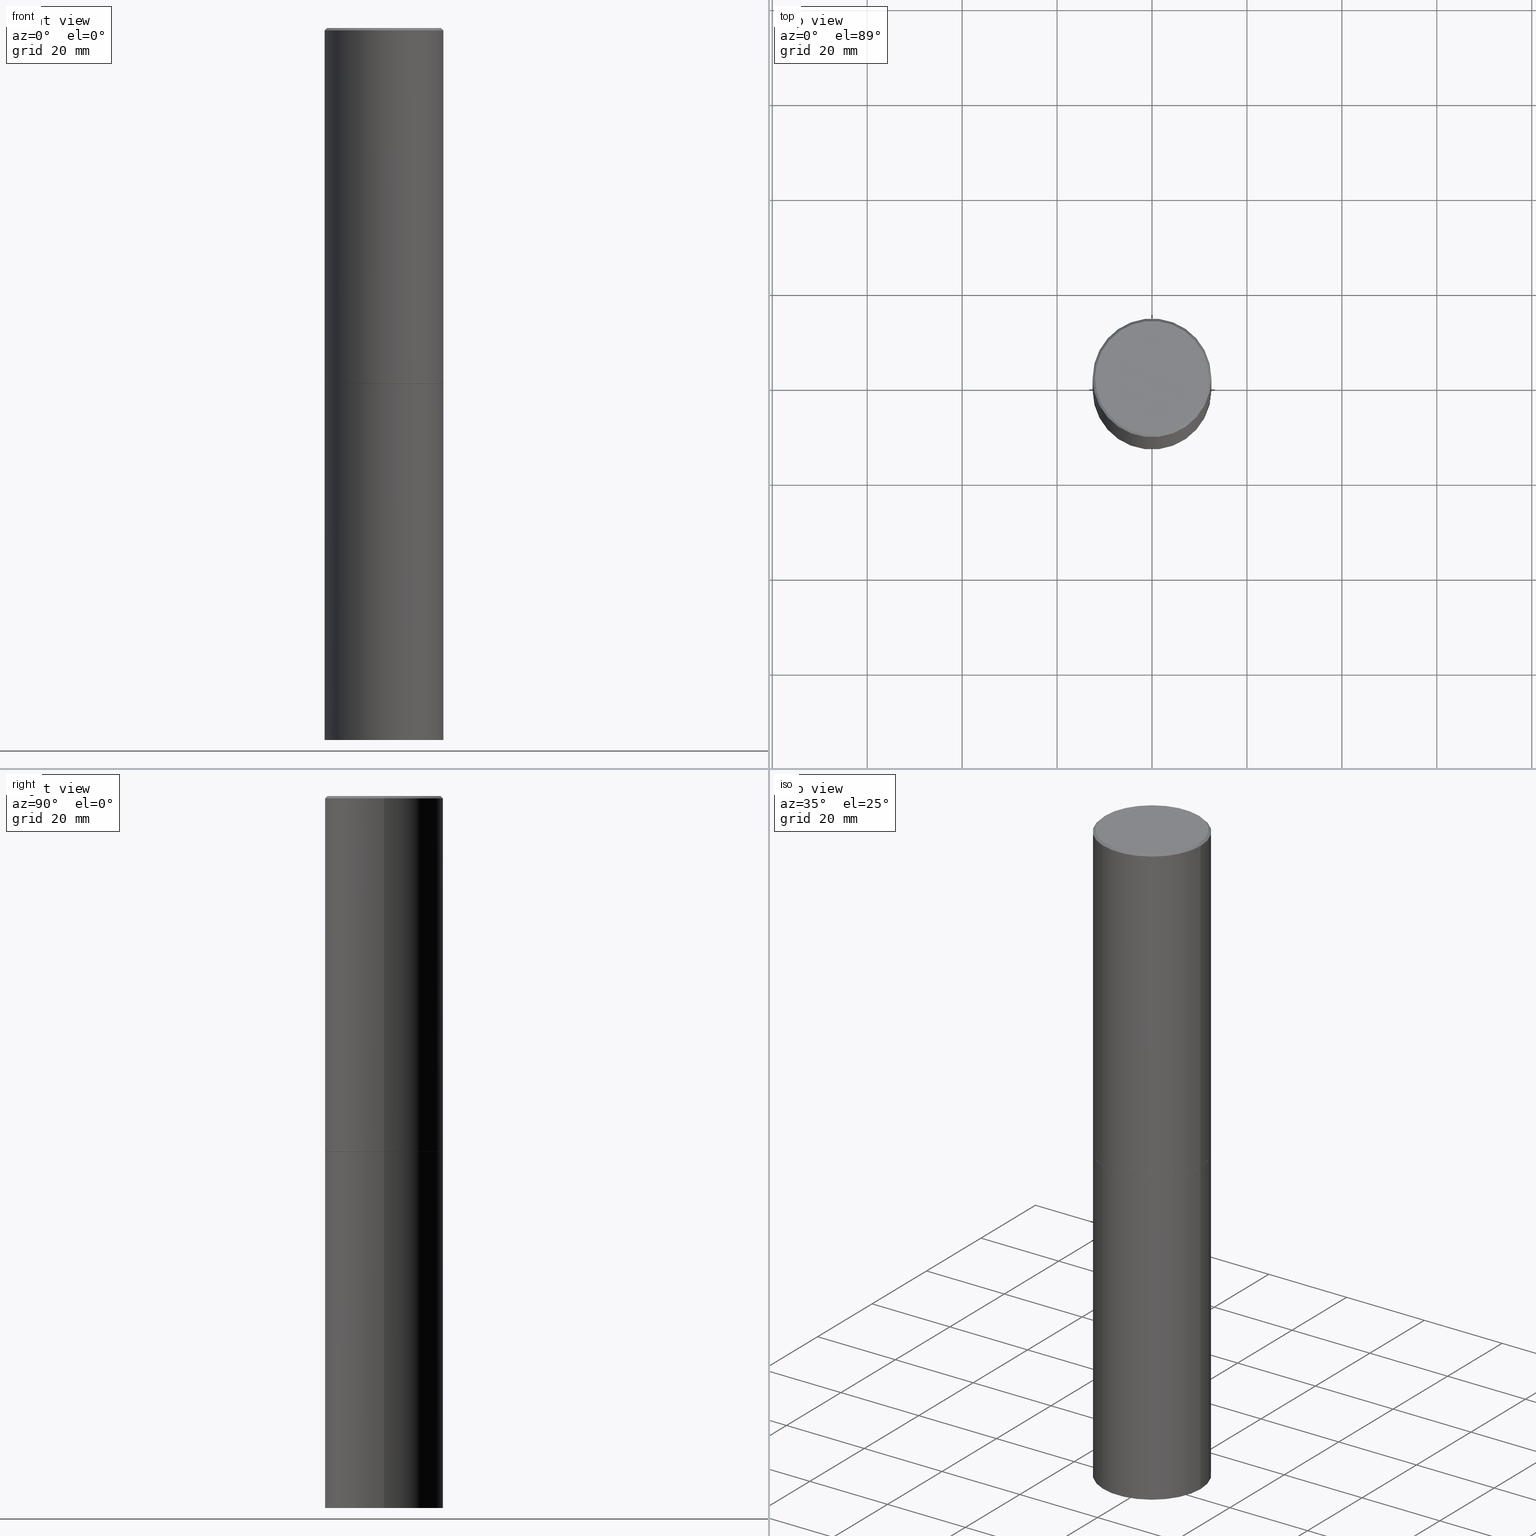
[diagram: canonical four-view strip — front | top / right | iso, engineering-drawing reading convention]
A machine part, canonical four-view strip (front | top / right | iso — engineering-drawing reading convention). The complete STEP part file that produces these views, byte-faithful:
ISO-10303-21;
HEADER;
FILE_DESCRIPTION (( 'STEP AP203' ),
    '1' );
FILE_NAME ('74881.STEP',
    '2024-05-03T15:04:31',
    ( '' ),
    ( '' ),
    'SwSTEP 2.0',
    'SolidWorks 2023',
    '' );
FILE_SCHEMA (( 'CONFIG_CONTROL_DESIGN' ));
ENDSEC;

DATA;
#1 = ORIENTED_EDGE ( 'NONE', *, *, #124, .F. ) ;
#2 = APPROVAL_DATE_TIME ( #34, #362 ) ;
#3 = EDGE_LOOP ( 'NONE', ( #225, #120, #30, #1 ) ) ;
#4 = DIRECTION ( 'NONE',  ( -1.000000000000000000, 6.982962677686265922E-15, 0.000000000000000000 ) ) ;
#5 = CARTESIAN_POINT ( 'NONE',  ( -0.4921499999999999764, 3.496936074043332897E-15, -2.420853904668951509E-29 ) ) ;
#6 = ORIENTED_EDGE ( 'NONE', *, *, #137, .F. ) ;
#7 = COORDINATED_UNIVERSAL_TIME_OFFSET ( 5, 0, .BEHIND. ) ;
#8 = DIRECTION ( 'NONE',  ( -2.445468806185136877E-29, 3.491481338843145188E-15, 1.000000000000000000 ) ) ;
#9 = ADVANCED_FACE ( 'NONE', ( #294 ), #233, .T. ) ;
#10 = DIRECTION ( 'NONE',  ( -2.445468806185136597E-29, 3.491481338843145583E-15, 1.000000000000000000 ) ) ;
#11 = FACE_OUTER_BOUND ( 'NONE', #155, .T. ) ;
#12 = LINE ( 'NONE', #173, #244 ) ;
#13 = ADVANCED_FACE ( 'NONE', ( #272 ), #148, .T. ) ;
#14 = DIRECTION ( 'NONE',  ( -1.000000000000000000, 6.982962677686265922E-15, -4.876176775795935793E-29 ) ) ;
#15 = CONICAL_SURFACE ( 'NONE', #24, 0.4911499999999999755, 0.7853981633978239785 ) ;
#16 = APPROVAL ( #310, 'UNSPECIFIED' ) ;
#17 = DIRECTION ( 'NONE',  ( -2.445468806185136597E-29, 3.491481338843145583E-15, 1.000000000000000000 ) ) ;
#18 = APPROVAL_ROLE ( '' ) ;
#19 = SECURITY_CLASSIFICATION ( '', '', #224 ) ;
#20 = CARTESIAN_POINT ( 'NONE',  ( 7.220735744022851398E-29, -1.030929694920215344E-14, -2.952699999999999214 ) ) ;
#21 = DATE_AND_TIME ( #110, #292 ) ;
#22 = CARTESIAN_POINT ( 'NONE',  ( 7.220735744022851398E-29, -1.030929694920215344E-14, -2.952699999999999214 ) ) ;
#23 = CONICAL_SURFACE ( 'NONE', #52, 0.4921499999999996988, 0.7853981633974472798 ) ;
#24 = AXIS2_PLACEMENT_3D ( 'NONE', #299, #328, #104 ) ;
#25 = PERSON_AND_ORGANIZATION ( #86, #228 ) ;
#26 = EDGE_CURVE ( 'NONE', #61, #260, #196, .T. ) ;
#27 = ORIENTED_EDGE ( 'NONE', *, *, #195, .T. ) ;
#28 = DATE_AND_TIME ( #345, #158 ) ;
#29 = CARTESIAN_POINT ( 'NONE',  ( 3.436665081823367957E-15, 0.4921499999999896513, -2.952700000000001435 ) ) ;
#30 = ORIENTED_EDGE ( 'NONE', *, *, #195, .F. ) ;
#31 = EDGE_CURVE ( 'NONE', #257, #288, #344, .T. ) ;
#32 = VECTOR ( 'NONE', #271, 39.37007874015748143 ) ;
#33 = CARTESIAN_POINT ( 'NONE',  ( 4.890937612370296805E-31, -6.982962677686323656E-17, -0.02000000000000009409 ) ) ;
#34 = DATE_AND_TIME ( #314, #168 ) ;
#35 = FACE_OUTER_BOUND ( 'NONE', #235, .T. ) ;
#36 = ORIENTED_EDGE ( 'NONE', *, *, #101, .T. ) ;
#37 = EDGE_CURVE ( 'NONE', #227, #281, #140, .T. ) ;
#38 = FACE_OUTER_BOUND ( 'NONE', #83, .T. ) ;
#39 = LOCAL_TIME ( 11, 4, 31.00000000000000000, #87 ) ;
#40 = PLANE ( 'NONE',  #145 ) ;
#41 = CC_DESIGN_PERSON_AND_ORGANIZATION_ASSIGNMENT ( #166, #190, ( #19 ) ) ;
#42 = DIRECTION ( 'NONE',  ( 1.000000000000000000, -6.982962677686265922E-15, 0.000000000000000000 ) ) ;
#43 = CARTESIAN_POINT ( 'NONE',  ( -0.4921499999999999764, -1.196718392382684217E-14, -5.905499999999999972 ) ) ;
#44 = DIRECTION ( 'NONE',  ( -0.7071067811865467956, 2.468850131082249172E-15, -0.7071067811865482389 ) ) ;
#45 = DIRECTION ( 'NONE',  ( 1.000000000000000000, -6.982962677686265922E-15, 4.876006802227162976E-29 ) ) ;
#46 = CARTESIAN_POINT ( 'NONE',  ( 3.436665081823440533E-15, 0.4921499999999793262, -5.905500000000001748 ) ) ;
#47 = AXIS2_PLACEMENT_3D ( 'NONE', #355, #72, #214 ) ;
#48 = CONICAL_SURFACE ( 'NONE', #184, 0.4911499999999999755, 0.7853981633978239785 ) ;
#49 = DIRECTION ( 'NONE',  ( 1.000000000000000000, -6.982962677686265922E-15, 0.000000000000000000 ) ) ;
#50 = DIRECTION ( 'NONE',  ( 0.000000000000000000, 0.000000000000000000, 1.000000000000000000 ) ) ;
#51 = CYLINDRICAL_SURFACE ( 'NONE', #357, 0.4921499999999999764 ) ;
#52 = AXIS2_PLACEMENT_3D ( 'NONE', #33, #258, #4 ) ;
#53 = CIRCLE ( 'NONE', #188, 0.4721499999999996255 ) ;
#54 = PERSON_AND_ORGANIZATION_ROLE ( 'design_owner' ) ;
#55 = APPLICATION_PROTOCOL_DEFINITION ( 'international standard', 'config_control_design', 1994, #191 ) ;
#56 = DATE_AND_TIME ( #249, #39 ) ;
#57 = DESIGN_CONTEXT ( 'detailed design', #191, 'design' ) ;
#58 = APPROVAL_PERSON_ORGANIZATION ( #335, #223, #18 ) ;
#59 = VERTEX_POINT ( 'NONE', #266 ) ;
#60 = VERTEX_POINT ( 'NONE', #75 ) ;
#61 = VERTEX_POINT ( 'NONE', #69 ) ;
#62 = CC_DESIGN_PERSON_AND_ORGANIZATION_ASSIGNMENT ( #320, #88, ( #256 ) ) ;
#63 = CC_DESIGN_APPROVAL ( #223, ( #256 ) ) ;
#64 = EDGE_CURVE ( 'NONE', #60, #92, #12, .T. ) ;
#65 = ORIENTED_EDGE ( 'NONE', *, *, #278, .F. ) ;
#66 = ORIENTED_EDGE ( 'NONE', *, *, #26, .F. ) ;
#67 = DIRECTION ( 'NONE',  ( 0.7071067811868130271, -2.468850131085038979E-15, 0.7071067811862817853 ) ) ;
#68 = DIRECTION ( 'NONE',  ( -2.445468806185136597E-29, 3.491481338843145583E-15, 1.000000000000000000 ) ) ;
#69 = CARTESIAN_POINT ( 'NONE',  ( -0.4721499999999996255, 3.331920641657999252E-15, 8.537024980177643606E-18 ) ) ;
#70 = CIRCLE ( 'NONE', #282, 0.4921499999999999764 ) ;
#71 = AXIS2_PLACEMENT_3D ( 'NONE', #241, #177, #49 ) ;
#72 = DIRECTION ( 'NONE',  ( -2.445468806185136597E-29, 3.491481338843145583E-15, 1.000000000000000000 ) ) ;
#73 = CARTESIAN_POINT ( 'NONE',  ( 1.444171603492632270E-28, -2.061894304653819197E-14, -5.905499999999999972 ) ) ;
#74 = EDGE_CURVE ( 'NONE', #169, #92, #70, .T. ) ;
#75 = CARTESIAN_POINT ( 'NONE',  ( 0.4911499999999999755, -1.373897906834776162E-14, -2.952699999999999214 ) ) ;
#76 = CARTESIAN_POINT ( 'NONE',  ( 0.4921499999999999764, -2.405560812836148932E-14, -5.905499999999999972 ) ) ;
#77 = CIRCLE ( 'NONE', #153, 0.4911499999999999755 ) ;
#78 = DIRECTION ( 'NONE',  ( 0.7071067811865467956, -7.319954787623254468E-15, -0.7071067811865482389 ) ) ;
#79 = VECTOR ( 'NONE', #78, 39.37007874015748143 ) ;
#80 = DIRECTION ( 'NONE',  ( -2.445468806185136597E-29, 3.491481338843145583E-15, 1.000000000000000000 ) ) ;
#81 = ADVANCED_FACE ( 'NONE', ( #38 ), #23, .T. ) ;
#82 =( CONVERSION_BASED_UNIT ( 'INCH', #341 ) LENGTH_UNIT ( ) NAMED_UNIT ( #342 ) );
#83 = EDGE_LOOP ( 'NONE', ( #187, #6, #291, #318 ) ) ;
#84 = CC_DESIGN_APPROVAL ( #16, ( #289 ) ) ;
#85 = PERSON_AND_ORGANIZATION ( #86, #228 ) ;
#86 = PERSON ( 'UNSPECIFIED', 'UNSPECIFIED', 'UNSPECIFIED', ('UNSPECIFIED'), ('UNSPECIFIED'), ('UNSPECIFIED') ) ;
#87 = COORDINATED_UNIVERSAL_TIME_OFFSET ( 5, 0, .BEHIND. ) ;
#88 = PERSON_AND_ORGANIZATION_ROLE ( 'creator' ) ;
#89 = ORIENTED_EDGE ( 'NONE', *, *, #106, .T. ) ;
#90 = VERTEX_POINT ( 'NONE', #286 ) ;
#91 = APPROVAL_STATUS ( 'not_yet_approved' ) ;
#92 = VERTEX_POINT ( 'NONE', #230 ) ;
#93 = DIRECTION ( 'NONE',  ( 1.000000000000000000, -6.982962677686265922E-15, 4.876176775795935793E-29 ) ) ;
#94 = ORIENTED_EDGE ( 'NONE', *, *, #74, .F. ) ;
#95 = ORIENTED_EDGE ( 'NONE', *, *, #64, .F. ) ;
#96 = CARTESIAN_POINT ( 'NONE',  ( 3.297005828269567997E-15, 0.4721499999999996255, -1.644234401644689488E-15 ) ) ;
#97 = DIRECTION ( 'NONE',  ( 1.000000000000000000, -6.982962677686265922E-15, 0.000000000000000000 ) ) ;
#98 = CARTESIAN_POINT ( 'NONE',  ( -0.4921499999999999764, -1.690881473276754954E-15, -2.951700000000000212 ) ) ;
#99 = AXIS2_PLACEMENT_3D ( 'NONE', #263, #210, #93 ) ;
#100 = CIRCLE ( 'NONE', #219, 0.4921499999999996988 ) ;
#101 = EDGE_CURVE ( 'NONE', #90, #60, #77, .T. ) ;
#102 = FACE_OUTER_BOUND ( 'NONE', #3, .T. ) ;
#103 = CARTESIAN_POINT ( 'NONE',  ( -0.4921499999999996988, 3.366835455046430506E-15, -0.02000000000000009409 ) ) ;
#104 = DIRECTION ( 'NONE',  ( 1.000000000000000000, -6.982962677686264344E-15, 0.000000000000000000 ) ) ;
#105 = CARTESIAN_POINT ( 'NONE',  ( 0.4921499999999996988, -3.446223716380120377E-15, -0.02000000000000009409 ) ) ;
#106 = EDGE_CURVE ( 'NONE', #288, #227, #198, .T. ) ;
#107 = FACE_OUTER_BOUND ( 'NONE', #234, .T. ) ;
#108 = LOCAL_TIME ( 11, 4, 31.00000000000000000, #279 ) ;
#109 = ADVANCED_FACE ( 'NONE', ( #35 ), #259, .F. ) ;
#110 = CALENDAR_DATE ( 2024, 3, 5 ) ;
#111 =( NAMED_UNIT ( * ) SI_UNIT ( $, .STERADIAN. ) SOLID_ANGLE_UNIT ( ) );
#112 = AXIS2_PLACEMENT_3D ( 'NONE', #125, #17, #45 ) ;
#113 = CIRCLE ( 'NONE', #237, 0.4921499999999999764 ) ;
#114 = CARTESIAN_POINT ( 'NONE',  ( 0.000000000000000000, 0.000000000000000000, 0.000000000000000000 ) ) ;
#115 = ORIENTED_EDGE ( 'NONE', *, *, #74, .T. ) ;
#116 = CIRCLE ( 'NONE', #71, 0.4921499999999999764 ) ;
#117 = EDGE_LOOP ( 'NONE', ( #285, #204, #287, #306 ) ) ;
#118 = DIRECTION ( 'NONE',  ( -2.445468806185136877E-29, 3.491481338843145188E-15, 1.000000000000000000 ) ) ;
#119 = PERSON_AND_ORGANIZATION_ROLE ( 'design_supplier' ) ;
#120 = ORIENTED_EDGE ( 'NONE', *, *, #313, .T. ) ;
#121 = FACE_OUTER_BOUND ( 'NONE', #194, .T. ) ;
#122 = DIRECTION ( 'NONE',  ( -0.7071067811868130271, 7.493145998871311837E-15, 0.7071067811862817853 ) ) ;
#123 = DIRECTION ( 'NONE',  ( 1.000000000000000000, -6.982962677686265922E-15, 4.876176775795935793E-29 ) ) ;
#124 = EDGE_CURVE ( 'NONE', #92, #343, #221, .T. ) ;
#125 = CARTESIAN_POINT ( 'NONE',  ( -2.087702828670439639E-46, 2.980686340760894400E-32, 8.537024980200822558E-18 ) ) ;
#126 = CIRCLE ( 'NONE', #141, 0.4911499999999999755 ) ;
#127 = DIRECTION ( 'NONE',  ( 1.000000000000000000, -6.982962677686265922E-15, 4.876006802227162976E-29 ) ) ;
#128 = CARTESIAN_POINT ( 'NONE',  ( 7.220735744022851398E-29, -1.030929694920215344E-14, -2.952699999999999214 ) ) ;
#129 = DIRECTION ( 'NONE',  ( 1.000000000000000000, 0.000000000000000000, 0.000000000000000000 ) ) ;
#130 = CC_DESIGN_PERSON_AND_ORGANIZATION_ASSIGNMENT ( #274, #215, ( #289 ) ) ;
#131 = CALENDAR_DATE ( 2024, 3, 5 ) ;
#132 = EDGE_CURVE ( 'NONE', #92, #169, #275, .T. ) ;
#133 = DATE_AND_TIME ( #131, #108 ) ;
#134 = DIRECTION ( 'NONE',  ( -2.445468806185136597E-29, 3.491481338843145583E-15, 1.000000000000000000 ) ) ;
#135 = CLOSED_SHELL ( 'NONE', ( #359, #229, #319, #81, #13, #220, #181, #170 ) ) ;
#136 = ORIENTED_EDGE ( 'NONE', *, *, #250, .T. ) ;
#137 = EDGE_CURVE ( 'NONE', #61, #59, #200, .T. ) ;
#138 = DIRECTION ( 'NONE',  ( 2.438088387897960049E-29, -3.491481338843145188E-15, -1.000000000000000000 ) ) ;
#139 = ORIENTED_EDGE ( 'NONE', *, *, #37, .T. ) ;
#140 = CIRCLE ( 'NONE', #183, 0.4921499999999999764 ) ;
#141 = AXIS2_PLACEMENT_3D ( 'NONE', #22, #363, #157 ) ;
#142 = ORIENTED_EDGE ( 'NONE', *, *, #353, .T. ) ;
#143 = ORIENTED_EDGE ( 'NONE', *, *, #252, .F. ) ;
#144 = UNCERTAINTY_MEASURE_WITH_UNIT (LENGTH_MEASURE( 1.000000000000000082E-05 ), #82, 'distance_accuracy_value', 'NONE');
#145 = AXIS2_PLACEMENT_3D ( 'NONE', #46, #333, #14 ) ;
#146 = CARTESIAN_POINT ( 'NONE',  ( -0.4921499999999996988, 3.366835455046430506E-15, -0.02000000000000009409 ) ) ;
#147 = DIRECTION ( 'NONE',  ( -2.445468806185136877E-29, 3.491481338843145188E-15, 1.000000000000000000 ) ) ;
#148 = CYLINDRICAL_SURFACE ( 'NONE', #99, 0.4921499999999998098 ) ;
#149 = CARTESIAN_POINT ( 'NONE',  ( 0.4921499999999999764, -3.436665081823295777E-15, 2.399810400207969603E-29 ) ) ;
#150 = DIRECTION ( 'NONE',  ( -2.445468806185136597E-29, 3.491481338843145583E-15, 1.000000000000000000 ) ) ;
#151 = DIRECTION ( 'NONE',  ( 2.438088387897960049E-29, -3.491481338843145188E-15, -1.000000000000000000 ) ) ;
#152 = EDGE_LOOP ( 'NONE', ( #315, #143 ) ) ;
#153 = AXIS2_PLACEMENT_3D ( 'NONE', #316, #226, #347 ) ;
#154 = PLANE ( 'NONE',  #163 ) ;
#155 = EDGE_LOOP ( 'NONE', ( #232, #324, #27, #66 ) ) ;
#156 = CARTESIAN_POINT ( 'NONE',  ( 0.000000000000000000, 0.000000000000000000, 0.000000000000000000 ) ) ;
#157 = DIRECTION ( 'NONE',  ( 1.000000000000000000, -6.982962677686264344E-15, 0.000000000000000000 ) ) ;
#158 = LOCAL_TIME ( 11, 4, 31.00000000000000000, #284 ) ;
#159 = APPROVAL_STATUS ( 'not_yet_approved' ) ;
#160 = CARTESIAN_POINT ( 'NONE',  ( 0.4921499999999996988, -3.446223716380120377E-15, -0.02000000000000009409 ) ) ;
#161 = ADVANCED_BREP_SHAPE_REPRESENTATION ( '74881', ( #189, #326, #245 ), #340 ) ;
#162 = EDGE_CURVE ( 'NONE', #260, #343, #321, .T. ) ;
#163 = AXIS2_PLACEMENT_3D ( 'NONE', #128, #301, #267 ) ;
#164 = ORIENTED_EDGE ( 'NONE', *, *, #101, .F. ) ;
#165 = DIRECTION ( 'NONE',  ( -1.000000000000000000, 6.982962677686265922E-15, -4.876176775795935793E-29 ) ) ;
#166 = PERSON_AND_ORGANIZATION ( #86, #228 ) ;
#167 = ORIENTED_EDGE ( 'NONE', *, *, #265, .F. ) ;
#168 = LOCAL_TIME ( 11, 4, 31.00000000000000000, #7 ) ;
#169 = VERTEX_POINT ( 'NONE', #98 ) ;
#170 = ADVANCED_FACE ( 'NONE', ( #121 ), #176, .F. ) ;
#171 = LINE ( 'NONE', #149, #32 ) ;
#172 = VECTOR ( 'NONE', #147, 39.37007874015748143 ) ;
#173 = CARTESIAN_POINT ( 'NONE',  ( 0.4911499999999999755, -1.373897906834776162E-14, -2.952699999999999214 ) ) ;
#174 = DIRECTION ( 'NONE',  ( 1.000000000000000000, -6.982962677686265922E-15, 0.000000000000000000 ) ) ;
#175 = ORIENTED_EDGE ( 'NONE', *, *, #137, .T. ) ;
#176 = PLANE ( 'NONE',  #254 ) ;
#177 = DIRECTION ( 'NONE',  ( -2.445468806185136597E-29, 3.491481338843145583E-15, 1.000000000000000000 ) ) ;
#178 = LINE ( 'NONE', #303, #297 ) ;
#179 = APPLICATION_PROTOCOL_DEFINITION ( 'international standard', 'config_control_design', 1994, #242 ) ;
#180 = DIRECTION ( 'NONE',  ( -1.000000000000000000, 6.982962677686265922E-15, 0.000000000000000000 ) ) ;
#181 = ADVANCED_FACE ( 'NONE', ( #208 ), #154, .F. ) ;
#182 = EDGE_LOOP ( 'NONE', ( #185, #36, #323, #94 ) ) ;
#183 = AXIS2_PLACEMENT_3D ( 'NONE', #238, #351, #97 ) ;
#184 = AXIS2_PLACEMENT_3D ( 'NONE', #20, #134, #309 ) ;
#185 = ORIENTED_EDGE ( 'NONE', *, *, #250, .F. ) ;
#186 = APPROVAL_DATE_TIME ( #56, #16 ) ;
#187 = ORIENTED_EDGE ( 'NONE', *, *, #293, .F. ) ;
#188 = AXIS2_PLACEMENT_3D ( 'NONE', #356, #239, #127 ) ;
#189 = MANIFOLD_SOLID_BREP ( 'Body-Move/Copy2[1]', #364 ) ;
#190 = PERSON_AND_ORGANIZATION_ROLE ( 'classification_officer' ) ;
#191 = APPLICATION_CONTEXT ( 'configuration controlled 3d designs of mechanical parts and assemblies' ) ;
#192 = EDGE_LOOP ( 'NONE', ( #203, #164 ) ) ;
#193 = PERSON_AND_ORGANIZATION ( #86, #228 ) ;
#194 = EDGE_LOOP ( 'NONE', ( #175, #366 ) ) ;
#195 = EDGE_CURVE ( 'NONE', #343, #260, #100, .T. ) ;
#196 = LINE ( 'NONE', #103, #268 ) ;
#197 = SHAPE_DEFINITION_REPRESENTATION ( #209, #161 ) ;
#198 = LINE ( 'NONE', #5, #290 ) ;
#199 = EDGE_LOOP ( 'NONE', ( #337, #89, #167, #65 ) ) ;
#200 = CIRCLE ( 'NONE', #112, 0.4721499999999996255 ) ;
#201 = CC_DESIGN_PERSON_AND_ORGANIZATION_ASSIGNMENT ( #273, #54, ( #205 ) ) ;
#202 = VECTOR ( 'NONE', #122, 39.37007874015748854 ) ;
#203 = ORIENTED_EDGE ( 'NONE', *, *, #353, .F. ) ;
#204 = ORIENTED_EDGE ( 'NONE', *, *, #252, .T. ) ;
#205 = PRODUCT ( '74881', '74881', '', ( #304 ) ) ;
#206 = ADVANCED_FACE ( 'NONE', ( #330 ), #40, .T. ) ;
#207 = CARTESIAN_POINT ( 'NONE',  ( 4.890937612370296805E-31, -6.982962677686323656E-17, -0.02000000000000009409 ) ) ;
#208 = FACE_OUTER_BOUND ( 'NONE', #192, .T. ) ;
#209 = PRODUCT_DEFINITION_SHAPE ( 'NONE', 'NONE',  #289 ) ;
#210 = DIRECTION ( 'NONE',  ( -2.445468806185136597E-29, 3.491481338843145583E-15, 1.000000000000000000 ) ) ;
#211 = CYLINDRICAL_SURFACE ( 'NONE', #308, 0.4921499999999998098 ) ;
#212 = DIRECTION ( 'NONE',  ( 1.000000000000000000, -6.982962677686265922E-15, 4.876176775795935793E-29 ) ) ;
#213 = CC_DESIGN_DATE_AND_TIME_ASSIGNMENT ( #28, #236, ( #19 ) ) ;
#214 = DIRECTION ( 'NONE',  ( 1.000000000000000000, -6.982962677686265922E-15, 0.000000000000000000 ) ) ;
#215 = PERSON_AND_ORGANIZATION_ROLE ( 'creator' ) ;
#216 = EDGE_CURVE ( 'NONE', #59, #61, #53, .T. ) ;
#217 = ORIENTED_EDGE ( 'NONE', *, *, #313, .F. ) ;
#218 = CARTESIAN_POINT ( 'NONE',  ( 0.4921499999999998098, -3.436665081823294593E-15, 2.399810400207968762E-29 ) ) ;
#219 = AXIS2_PLACEMENT_3D ( 'NONE', #207, #248, #262 ) ;
#220 = ADVANCED_FACE ( 'NONE', ( #360 ), #15, .T. ) ;
#221 = LINE ( 'NONE', #218, #172 ) ;
#222 = APPROVAL_ROLE ( '' ) ;
#223 = APPROVAL ( #159, 'UNSPECIFIED' ) ;
#224 = SECURITY_CLASSIFICATION_LEVEL ( 'unclassified' ) ;
#225 = ORIENTED_EDGE ( 'NONE', *, *, #132, .T. ) ;
#226 = DIRECTION ( 'NONE',  ( -2.445468806185136597E-29, 3.491481338843145583E-15, 1.000000000000000000 ) ) ;
#227 = VERTEX_POINT ( 'NONE', #247 ) ;
#228 = ORGANIZATION ( 'UNSPECIFIED', 'UNSPECIFIED', '' ) ;
#229 = ADVANCED_FACE ( 'NONE', ( #102 ), #211, .T. ) ;
#230 = CARTESIAN_POINT ( 'NONE',  ( 0.4921499999999999764, -1.374247054968660936E-14, -2.951700000000000212 ) ) ;
#231 = APPROVAL_DATE_TIME ( #133, #223 ) ;
#232 = ORIENTED_EDGE ( 'NONE', *, *, #216, .F. ) ;
#233 = CYLINDRICAL_SURFACE ( 'NONE', #307, 0.4921499999999999764 ) ;
#234 = EDGE_LOOP ( 'NONE', ( #142, #136, #349, #95 ) ) ;
#235 = EDGE_LOOP ( 'NONE', ( #277, #139 ) ) ;
#236 = DATE_TIME_ROLE ( 'classification_date' ) ;
#237 = AXIS2_PLACEMENT_3D ( 'NONE', #73, #68, #174 ) ;
#238 = CARTESIAN_POINT ( 'NONE',  ( 7.220735744022852519E-29, -1.030929694920215502E-14, -2.952700000000000102 ) ) ;
#239 = DIRECTION ( 'NONE',  ( -2.445468806185136597E-29, 3.491481338843145583E-15, 1.000000000000000000 ) ) ;
#240 = CC_DESIGN_PERSON_AND_ORGANIZATION_ASSIGNMENT ( #193, #119, ( #256 ) ) ;
#241 = CARTESIAN_POINT ( 'NONE',  ( 7.220735744022852519E-29, -1.030929694920215502E-14, -2.952700000000000102 ) ) ;
#242 = APPLICATION_CONTEXT ( 'configuration controlled 3d designs of mechanical parts and assemblies' ) ;
#243 = CARTESIAN_POINT ( 'NONE',  ( 4.890937612370296805E-31, -6.982962677686323656E-17, -0.02000000000000009409 ) ) ;
#244 = VECTOR ( 'NONE', #67, 39.37007874015748854 ) ;
#245 = AXIS2_PLACEMENT_3D ( 'NONE', #114, #50, #129 ) ;
#246 = CARTESIAN_POINT ( 'NONE',  ( 7.218290275216666916E-29, -1.030580546786331359E-14, -2.951700000000000212 ) ) ;
#247 = CARTESIAN_POINT ( 'NONE',  ( -0.4921499999999999764, -1.196718392382684217E-14, -2.952700000000000102 ) ) ;
#248 = DIRECTION ( 'NONE',  ( -2.445468806185136597E-29, 3.491481338843145583E-15, 1.000000000000000000 ) ) ;
#249 = CALENDAR_DATE ( 2024, 3, 5 ) ;
#250 = EDGE_CURVE ( 'NONE', #90, #169, #332, .T. ) ;
#251 = DIRECTION ( 'NONE',  ( 1.000000000000000000, -6.982962677686265922E-15, 4.876176775795935793E-29 ) ) ;
#252 = EDGE_CURVE ( 'NONE', #288, #257, #113, .T. ) ;
#253 = DIRECTION ( 'NONE',  ( 2.445468806185136597E-29, -3.491481338843145583E-15, -1.000000000000000000 ) ) ;
#254 = AXIS2_PLACEMENT_3D ( 'NONE', #96, #151, #352 ) ;
#255 =( LENGTH_UNIT ( ) NAMED_UNIT ( * ) SI_UNIT ( $, .METRE. ) );
#256 = PRODUCT_DEFINITION_FORMATION_WITH_SPECIFIED_SOURCE ( 'ANY', '', #205, .NOT_KNOWN. ) ;
#257 = VERTEX_POINT ( 'NONE', #76 ) ;
#258 = DIRECTION ( 'NONE',  ( 2.445468806185136597E-29, -3.491481338843145583E-15, -1.000000000000000000 ) ) ;
#259 = PLANE ( 'NONE',  #339 ) ;
#260 = VERTEX_POINT ( 'NONE', #146 ) ;
#261 = CONICAL_SURFACE ( 'NONE', #283, 0.4921499999999996988, 0.7853981633974472798 ) ;
#262 = DIRECTION ( 'NONE',  ( 1.000000000000000000, -6.982962677686265922E-15, 0.000000000000000000 ) ) ;
#263 = CARTESIAN_POINT ( 'NONE',  ( 0.000000000000000000, 0.000000000000000000, 0.000000000000000000 ) ) ;
#264 = LINE ( 'NONE', #105, #79 ) ;
#265 = EDGE_CURVE ( 'NONE', #281, #227, #116, .T. ) ;
#266 = CARTESIAN_POINT ( 'NONE',  ( 0.4721499999999996255, -3.342703923013973396E-15, 8.537024980224040028E-18 ) ) ;
#267 = DIRECTION ( 'NONE',  ( 1.000000000000000000, -6.982962677686265922E-15, 4.876176775795935793E-29 ) ) ;
#268 = VECTOR ( 'NONE', #44, 39.37007874015748143 ) ;
#269 = ORIENTED_EDGE ( 'NONE', *, *, #162, .F. ) ;
#270 = CC_DESIGN_APPROVAL ( #362, ( #19 ) ) ;
#271 = DIRECTION ( 'NONE',  ( -2.445468806185136877E-29, 3.491481338843145188E-15, 1.000000000000000000 ) ) ;
#272 = FACE_OUTER_BOUND ( 'NONE', #312, .T. ) ;
#273 = PERSON_AND_ORGANIZATION ( #86, #228 ) ;
#274 = PERSON_AND_ORGANIZATION ( #86, #228 ) ;
#275 = CIRCLE ( 'NONE', #329, 0.4921499999999999764 ) ;
#276 = COORDINATED_UNIVERSAL_TIME_OFFSET ( 5, 0, .BEHIND. ) ;
#277 = ORIENTED_EDGE ( 'NONE', *, *, #265, .T. ) ;
#278 = EDGE_CURVE ( 'NONE', #257, #281, #171, .T. ) ;
#279 = COORDINATED_UNIVERSAL_TIME_OFFSET ( 5, 0, .BEHIND. ) ;
#280 = FACE_OUTER_BOUND ( 'NONE', #117, .T. ) ;
#281 = VERTEX_POINT ( 'NONE', #298 ) ;
#282 = AXIS2_PLACEMENT_3D ( 'NONE', #246, #295, #42 ) ;
#283 = AXIS2_PLACEMENT_3D ( 'NONE', #243, #253, #180 ) ;
#284 = COORDINATED_UNIVERSAL_TIME_OFFSET ( 5, 0, .BEHIND. ) ;
#285 = ORIENTED_EDGE ( 'NONE', *, *, #106, .F. ) ;
#286 = CARTESIAN_POINT ( 'NONE',  ( -0.4911499999999999755, -6.814167848168200725E-15, -2.952699999999999214 ) ) ;
#287 = ORIENTED_EDGE ( 'NONE', *, *, #278, .T. ) ;
#288 = VERTEX_POINT ( 'NONE', #43 ) ;
#289 = PRODUCT_DEFINITION ( 'UNKNOWN', '', #256, #57 ) ;
#290 = VECTOR ( 'NONE', #118, 39.37007874015748143 ) ;
#291 = ORIENTED_EDGE ( 'NONE', *, *, #26, .T. ) ;
#292 = LOCAL_TIME ( 11, 4, 31.00000000000000000, #276 ) ;
#293 = EDGE_CURVE ( 'NONE', #59, #343, #264, .T. ) ;
#294 = FACE_OUTER_BOUND ( 'NONE', #199, .T. ) ;
#295 = DIRECTION ( 'NONE',  ( -2.445468806185136597E-29, 3.491481338843145583E-15, 1.000000000000000000 ) ) ;
#296 = DIRECTION ( 'NONE',  ( 1.000000000000000000, -6.982962677686265922E-15, 0.000000000000000000 ) ) ;
#297 = VECTOR ( 'NONE', #8, 39.37007874015748143 ) ;
#298 = CARTESIAN_POINT ( 'NONE',  ( 0.4921499999999999764, -1.374596203102545079E-14, -2.952700000000000102 ) ) ;
#299 = CARTESIAN_POINT ( 'NONE',  ( 7.220735744022851398E-29, -1.030929694920215344E-14, -2.952699999999999214 ) ) ;
#300 = PRODUCT_RELATED_PRODUCT_CATEGORY ( 'detail', '', ( #205 ) ) ;
#301 = DIRECTION ( 'NONE',  ( -2.438088387897960049E-29, 3.491481338843145188E-15, 1.000000000000000000 ) ) ;
#302 = APPROVAL_PERSON_ORGANIZATION ( #85, #16, #222 ) ;
#303 = CARTESIAN_POINT ( 'NONE',  ( -0.4921499999999998098, 3.496936074043331714E-15, -2.420853904668950949E-29 ) ) ;
#304 = MECHANICAL_CONTEXT ( 'NONE', #242, 'mechanical' ) ;
#305 = DIRECTION ( 'NONE',  ( -2.445468806185136597E-29, 3.491481338843145583E-15, 1.000000000000000000 ) ) ;
#306 = ORIENTED_EDGE ( 'NONE', *, *, #37, .F. ) ;
#307 = AXIS2_PLACEMENT_3D ( 'NONE', #348, #80, #123 ) ;
#308 = AXIS2_PLACEMENT_3D ( 'NONE', #156, #358, #212 ) ;
#309 = DIRECTION ( 'NONE',  ( 1.000000000000000000, -6.982962677686264344E-15, 0.000000000000000000 ) ) ;
#310 = APPROVAL_STATUS ( 'not_yet_approved' ) ;
#311 =( NAMED_UNIT ( * ) PLANE_ANGLE_UNIT ( ) SI_UNIT ( $, .RADIAN. ) );
#312 = EDGE_LOOP ( 'NONE', ( #217, #115, #346, #269 ) ) ;
#313 = EDGE_CURVE ( 'NONE', #169, #260, #178, .T. ) ;
#314 = CALENDAR_DATE ( 2024, 3, 5 ) ;
#315 = ORIENTED_EDGE ( 'NONE', *, *, #31, .F. ) ;
#316 = CARTESIAN_POINT ( 'NONE',  ( 7.220735744022851398E-29, -1.030929694920215344E-14, -2.952699999999999214 ) ) ;
#317 = APPROVAL_ROLE ( '' ) ;
#318 = ORIENTED_EDGE ( 'NONE', *, *, #162, .T. ) ;
#319 = ADVANCED_FACE ( 'NONE', ( #11 ), #261, .T. ) ;
#320 = PERSON_AND_ORGANIZATION ( #86, #228 ) ;
#321 = CIRCLE ( 'NONE', #47, 0.4921499999999996988 ) ;
#322 = CC_DESIGN_SECURITY_CLASSIFICATION ( #19, ( #256 ) ) ;
#323 = ORIENTED_EDGE ( 'NONE', *, *, #64, .T. ) ;
#324 = ORIENTED_EDGE ( 'NONE', *, *, #293, .T. ) ;
#325 = CARTESIAN_POINT ( 'NONE',  ( -0.4911499999999999755, -6.819466302516420761E-15, -2.952699999999999214 ) ) ;
#326 = MANIFOLD_SOLID_BREP ( 'Body-Move/Copy2[2]', #135 ) ;
#327 = DIRECTION ( 'NONE',  ( 1.000000000000000000, -6.982962677686265922E-15, 0.000000000000000000 ) ) ;
#328 = DIRECTION ( 'NONE',  ( -2.445468806185136597E-29, 3.491481338843145583E-15, 1.000000000000000000 ) ) ;
#329 = AXIS2_PLACEMENT_3D ( 'NONE', #361, #10, #296 ) ;
#330 = FACE_OUTER_BOUND ( 'NONE', #152, .T. ) ;
#331 = CC_DESIGN_DATE_AND_TIME_ASSIGNMENT ( #21, #336, ( #289 ) ) ;
#332 = LINE ( 'NONE', #325, #202 ) ;
#333 = DIRECTION ( 'NONE',  ( 2.438088387897960049E-29, -3.491481338843145188E-15, -1.000000000000000000 ) ) ;
#334 = APPROVAL_PERSON_ORGANIZATION ( #25, #362, #317 ) ;
#335 = PERSON_AND_ORGANIZATION ( #86, #228 ) ;
#336 = DATE_TIME_ROLE ( 'creation_date' ) ;
#337 = ORIENTED_EDGE ( 'NONE', *, *, #31, .T. ) ;
#338 = ADVANCED_FACE ( 'NONE', ( #280 ), #51, .T. ) ;
#339 = AXIS2_PLACEMENT_3D ( 'NONE', #29, #138, #165 ) ;
#340 =( GEOMETRIC_REPRESENTATION_CONTEXT ( 3 ) GLOBAL_UNCERTAINTY_ASSIGNED_CONTEXT ( ( #144 ) ) GLOBAL_UNIT_ASSIGNED_CONTEXT ( ( #82, #311, #111 ) ) REPRESENTATION_CONTEXT ( 'NONE', 'WORKASPACE' ) );
#341 = LENGTH_MEASURE_WITH_UNIT ( LENGTH_MEASURE( 0.02539999999999999897 ), #255 );
#342 = DIMENSIONAL_EXPONENTS ( 1.000000000000000000, 0.000000000000000000, 0.000000000000000000, 0.000000000000000000, 0.000000000000000000, 0.000000000000000000, 0.000000000000000000 ) ;
#343 = VERTEX_POINT ( 'NONE', #160 ) ;
#344 = CIRCLE ( 'NONE', #350, 0.4921499999999999764 ) ;
#345 = CALENDAR_DATE ( 2024, 3, 5 ) ;
#346 = ORIENTED_EDGE ( 'NONE', *, *, #124, .T. ) ;
#347 = DIRECTION ( 'NONE',  ( 1.000000000000000000, -6.982962677686264344E-15, 0.000000000000000000 ) ) ;
#348 = CARTESIAN_POINT ( 'NONE',  ( 0.000000000000000000, 0.000000000000000000, 0.000000000000000000 ) ) ;
#349 = ORIENTED_EDGE ( 'NONE', *, *, #132, .F. ) ;
#350 = AXIS2_PLACEMENT_3D ( 'NONE', #354, #150, #327 ) ;
#351 = DIRECTION ( 'NONE',  ( -2.445468806185136597E-29, 3.491481338843145583E-15, 1.000000000000000000 ) ) ;
#352 = DIRECTION ( 'NONE',  ( -1.000000000000000000, 6.982962677686265922E-15, -4.876176775795935793E-29 ) ) ;
#353 = EDGE_CURVE ( 'NONE', #60, #90, #126, .T. ) ;
#354 = CARTESIAN_POINT ( 'NONE',  ( 1.444171603492632270E-28, -2.061894304653819197E-14, -5.905499999999999972 ) ) ;
#355 = CARTESIAN_POINT ( 'NONE',  ( 4.890937612370296805E-31, -6.982962677686323656E-17, -0.02000000000000009409 ) ) ;
#356 = CARTESIAN_POINT ( 'NONE',  ( -2.087702828670439639E-46, 2.980686340760894400E-32, 8.537024980200822558E-18 ) ) ;
#357 = AXIS2_PLACEMENT_3D ( 'NONE', #365, #305, #251 ) ;
#358 = DIRECTION ( 'NONE',  ( -2.445468806185136597E-29, 3.491481338843145583E-15, 1.000000000000000000 ) ) ;
#359 = ADVANCED_FACE ( 'NONE', ( #107 ), #48, .T. ) ;
#360 = FACE_OUTER_BOUND ( 'NONE', #182, .T. ) ;
#361 = CARTESIAN_POINT ( 'NONE',  ( 7.218290275216666916E-29, -1.030580546786331359E-14, -2.951700000000000212 ) ) ;
#362 = APPROVAL ( #91, 'UNSPECIFIED' ) ;
#363 = DIRECTION ( 'NONE',  ( -2.445468806185136597E-29, 3.491481338843145583E-15, 1.000000000000000000 ) ) ;
#364 = CLOSED_SHELL ( 'NONE', ( #9, #206, #109, #338 ) ) ;
#365 = CARTESIAN_POINT ( 'NONE',  ( 0.000000000000000000, 0.000000000000000000, 0.000000000000000000 ) ) ;
#366 = ORIENTED_EDGE ( 'NONE', *, *, #216, .T. ) ;
ENDSEC;
END-ISO-10303-21;
